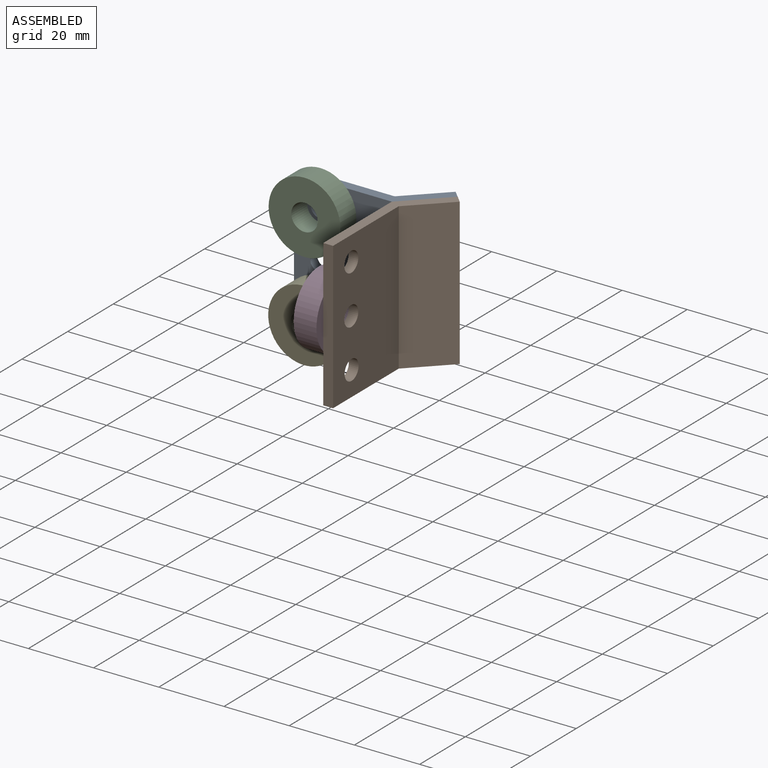
[diagram: assembled view]
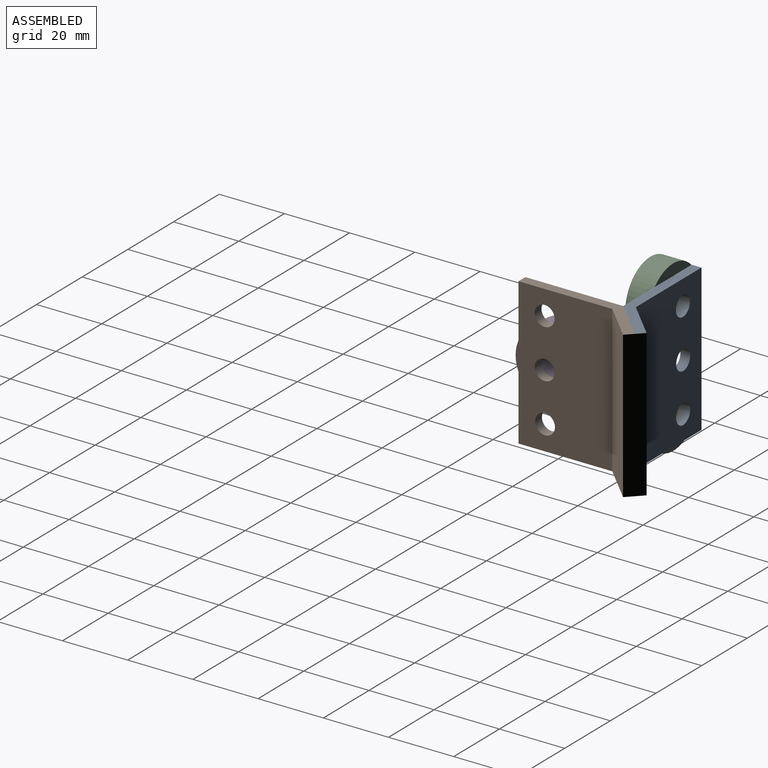
[diagram: assembled view, second angle]
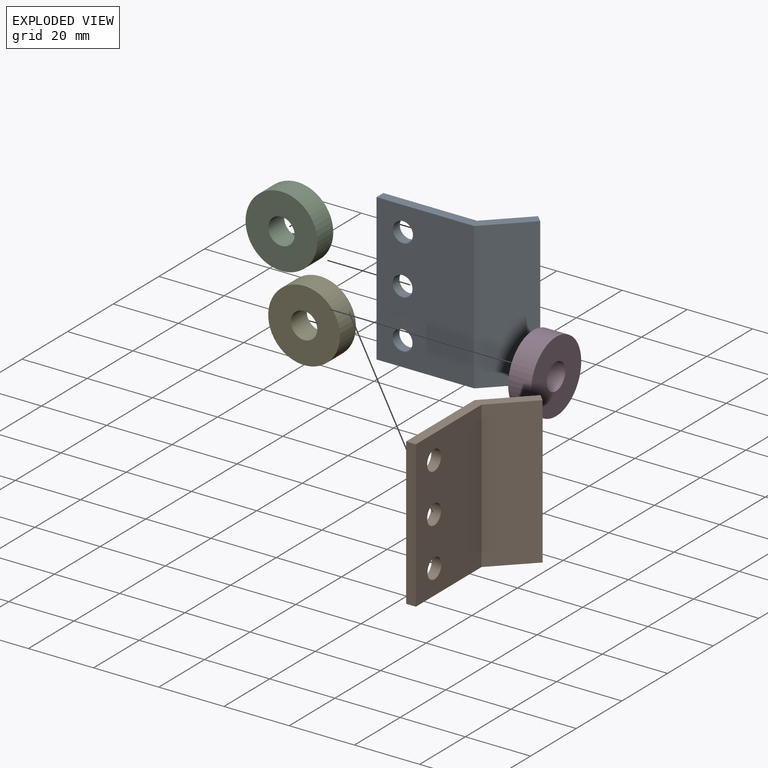
[diagram: exploded view]
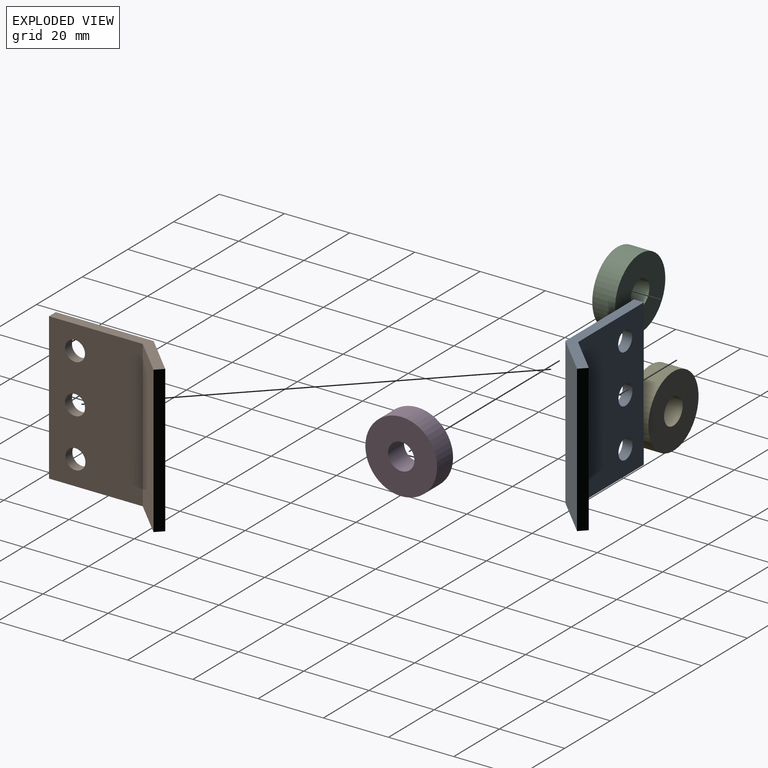
[diagram: exploded view, second angle]
ASSEMBLY  parts=5 mates=4
PART A: 11 faces, bbox 14x41.9x45 mm
  f0: plane 45x30mm, normal (-1,0,0), area 1262mm2, adj f2,f5,f6,f7,f8,f9,f10
  f1: plane 45x28.76mm, normal (1,0,0), area 1206.1mm2, adj f2,f3,f6,f7,f8,f9,f10
  f2: plane 45x3mm, normal (0,-1,0), area 135mm2, adj f0,f1,f6,f7
  f3: plane 45x11.01mm, normal (0.71,-0.71,0), area 700.7mm2, adj f1,f4,f6,f7
  f4: plane 45x2.12mm, normal (0.71,0.71,0), area 135mm2, adj f3,f5,f6,f7
  f5: plane 45x11.89mm, normal (-0.71,0.71,0), area 756.7mm2, adj f0,f4,f6,f7
  f6: plane 41.89x14.01mm, normal (0,0,1), area 136.7mm2, adj f0,f1,f2,f3,f4,f5
  f7: plane 41.89x14.01mm, normal (0,0,-1), area 136.7mm2, adj f0,f1,f2,f3,f4,f5
  f8: cylinder r=3.06mm len=6.11mm, axis (1,0,0), area 57.6mm2, adj f0,f1
  f9: cylinder r=3.06mm len=6.11mm, axis (1,0,0), area 57.6mm2, adj f0,f1
  f10: cylinder r=3.06mm len=6.11mm, axis (1,0,0), area 57.6mm2, adj f0,f1
PART B: same geometry as A
PART C: 4 faces, bbox 22x22x7 mm
  f0: cylinder r=4.05mm len=8.1mm, axis (0,0,-1), area 178.1mm2, adj f2,f3
  f1: cylinder r=11mm len=22mm, axis (0,0,-1), area 483.8mm2, adj f2,f3
  f2: plane 22x22mm, normal (0,0,1), area 328.6mm2, adj f0,f1
  f3: plane 22x22mm, normal (0,0,-1), area 328.6mm2, adj f0,f1
PART D: same geometry as C
PART E: same geometry as C
PLACE A rot(axis=(0.71,0.71,0),180deg) t=(-6.33,42.51,24.79)mm
PLACE B t=(23.67,12.51,-20.21)mm
PLACE C rot(axis=(-1,0,0),90deg) t=(1.79,35.51,17.25)mm
PLACE D rot(axis=(0.71,0,0.71),180deg) t=(16.67,20.51,2.32)mm
PLACE E rot(axis=(-0.21,0.69,0.69),156.7deg) t=(1.67,35.51,-12.75)mm
MATE revolute C.f0 <-> A.f10  axis (0,1,0) through (1.79,42.51,17.25)mm
MATE fastened A.f5 <-> B.f5  axis (0.71,-0.71,0) through (29.61,48.45,2.29)mm
MATE revolute A.f9 <-> E.f1  axis (0,-1,0) through (1.67,42.51,-12.75)mm
MATE revolute D.f0 <-> B.f8  axis (1,0,0) through (23.67,20.51,2.32)mm
